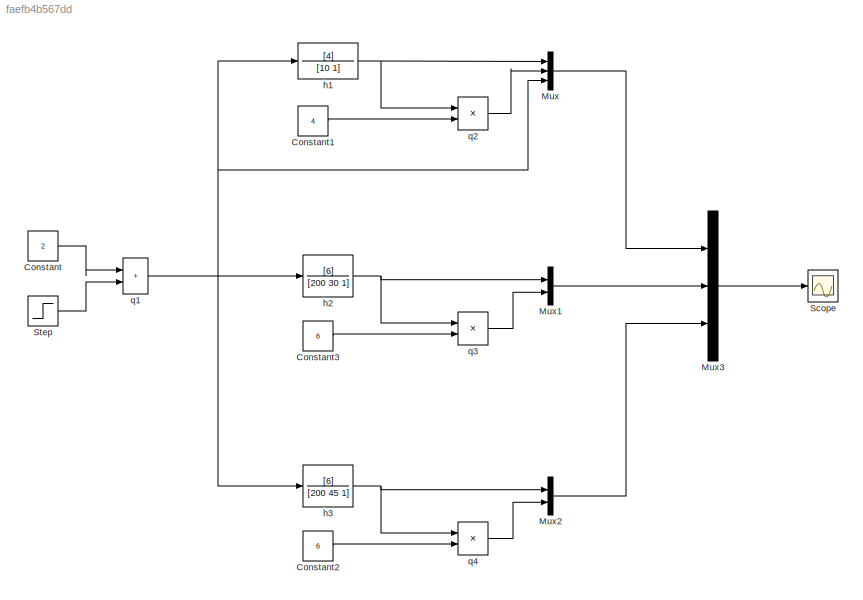
MODEL slx_faefb4b567dd
KIND model
CONFIG AbsTol = auto
CONFIG EnableMultiTasking = off
CONFIG FixedStep = auto
CONFIG MaxStep = auto
CONFIG MinStep = auto
CONFIG RelTol = 1e-3
CONFIG SampleTimeConstraint = Unconstrained
CONFIG Solver = VariableStepAuto
CONFIG SolverName = VariableStepAuto
CONFIG StartTime = 0.0
CONFIG StopTime = 500
BLOCK [Constant] Constant
  Value = 2
BLOCK [Constant] Constant1
  Value = 4
BLOCK [Constant] Constant2
  Value = 6
BLOCK [Constant] Constant3
  Value = 6
BLOCK [Mux] Mux
  DisplayOption = bar
  Inputs = 3
  Ports = [3, 1]
BLOCK [Mux] Mux1
  DisplayOption = bar
  Inputs = 2
  Ports = [2, 1]
BLOCK [Mux] Mux2
  DisplayOption = bar
  Inputs = 2
  Ports = [2, 1]
BLOCK [Mux] Mux3
  DisplayOption = bar
  Inputs = 3
  Ports = [3, 1]
BLOCK [Scope] Scope
  Floating = off
  NumInputPorts = 1
  Ports = [1]
  ScopeSpecificationString = Simulink.scopes.TimeScopeBlockCfg('CurrentConfiguration', extmgr.ConfigurationSet(extmgr.Configuration('Core','General UI',true),extmgr.Configuration('Core','Source UI',true),extmgr.Configuration('Sources','WiredSimulink',true),extmgr.Configuration('Visuals','Time Domain',true,'SerializedDisplays',{struct('MinYLimReal','-7.5','MaxYLimReal','67.5','YLabelReal','','MinYLimMag','0.00000','MaxYLimMag'...<+1525ch>
BLOCK [Step] Step
  After = 8
  SampleTime = 0
  Time = 50
BLOCK [TransferFcn] h1
  Denominator = [10 1]
  Numerator = [4]
BLOCK [TransferFcn] h2
  Denominator = [200 30 1]
  Numerator = [6]
BLOCK [TransferFcn] h3
  Denominator = [200 45 1]
  Numerator = [6]
BLOCK [Sum] q1
  IconShape = rectangular
  Inputs = |++
  Ports = [2, 1]
BLOCK [Product] q2
  Inputs = */
  Ports = [2, 1]
BLOCK [Product] q3
  Inputs = */
  Ports = [2, 1]
BLOCK [Product] q4
  Inputs = */
  Ports = [2, 1]
LINE Constant1:1 -> q2:2
LINE Constant2:1 -> q4:2
LINE Constant3:1 -> q3:2
LINE Constant:1 -> q1:1
LINE Mux1:1 -> Mux3:2
LINE Mux2:1 -> Mux3:3
LINE Mux3:1 -> Scope:1
LINE Mux:1 -> Mux3:1
LINE Step:1 -> q1:2
NET h1:1 -> Mux:1, q2:1
NET h2:1 -> Mux1:1, q3:1
NET h3:1 -> Mux2:1, q4:1
NET q1:1 -> Mux:3, h1:1, h2:1, h3:1
LINE q2:1 -> Mux:2
LINE q3:1 -> Mux1:2
LINE q4:1 -> Mux2:2
note: NET lines group one-source signal fan-out (src -> all destinations, sorted); 1:1 wires keep LINE
